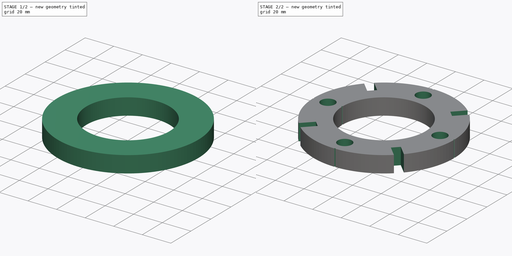
[diagram: build sequence overview — one tinted view per stage of 2, left to right]
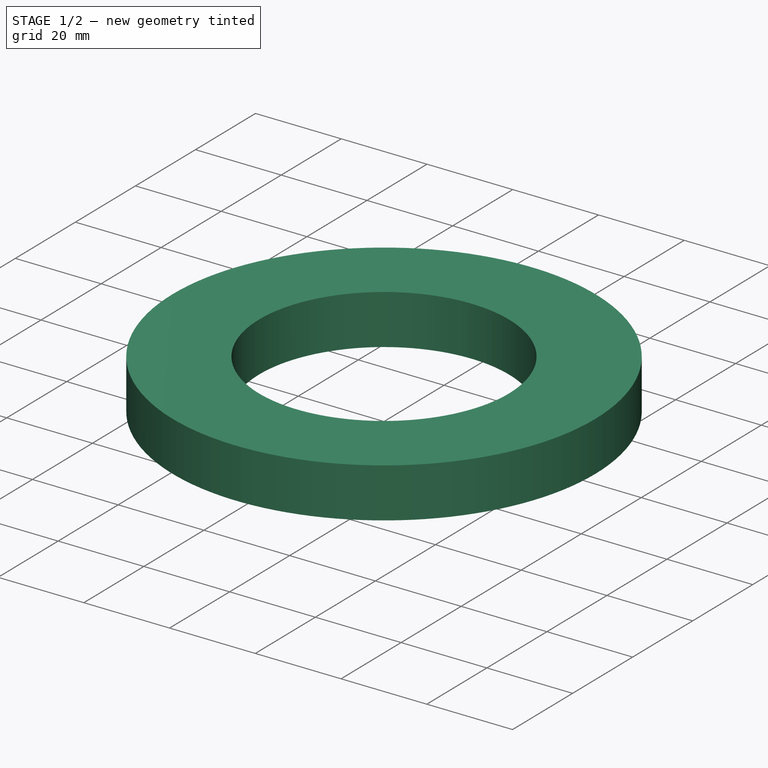
[diagram: stage 1 of 2 — iso view after this stage's code; geometry added in this stage tinted green]
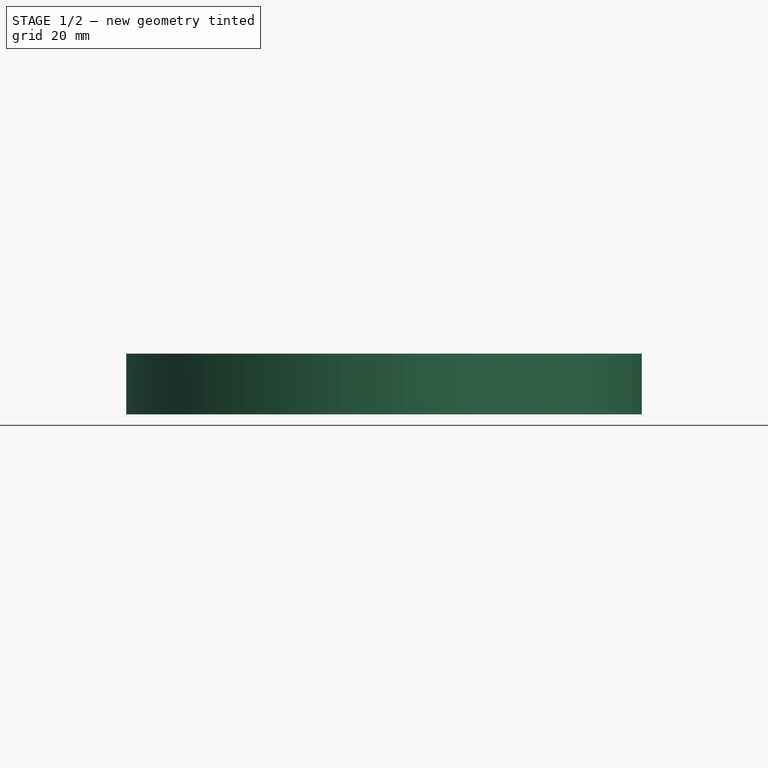
[diagram: stage 1 of 2 — front view after this stage's code; geometry added in this stage tinted green]
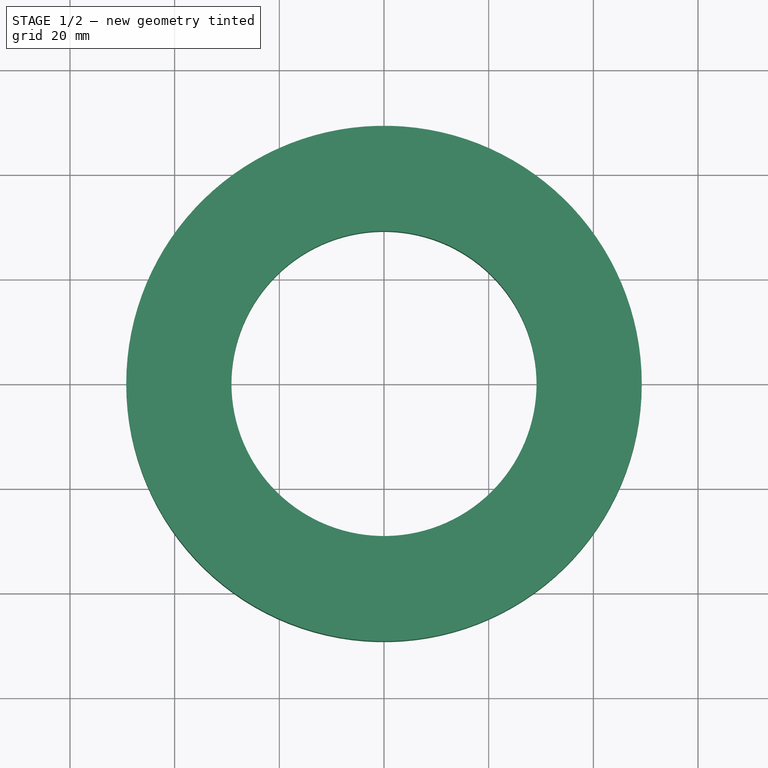
[diagram: stage 1 of 2 — top view after this stage's code; geometry added in this stage tinted green]
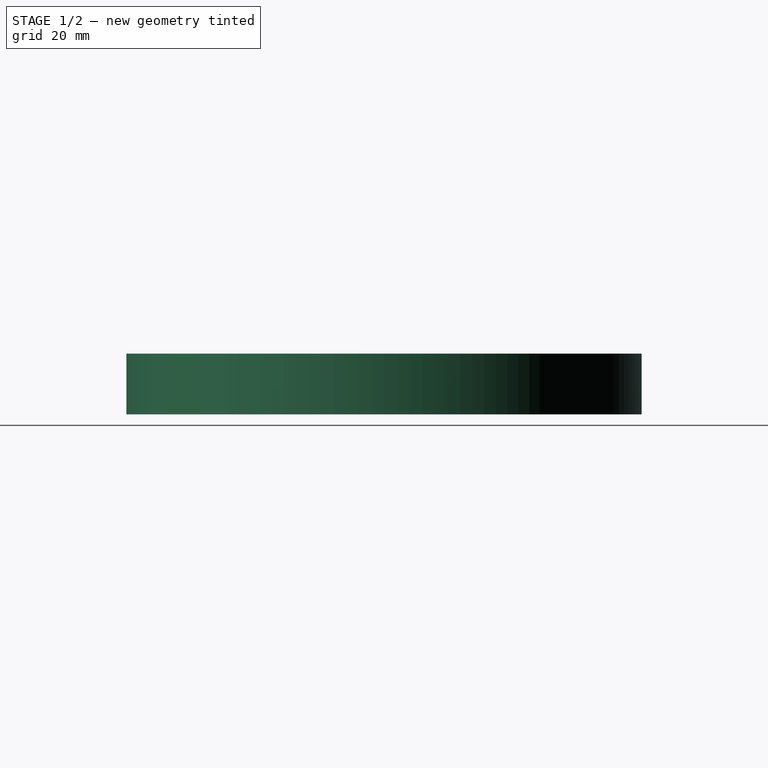
[diagram: stage 1 of 2 — right view after this stage's code; geometry added in this stage tinted green]
FCSTD DOCUMENT  (FreeCAD 1.0R39109 (Git))
Label: CenteringRing
License: Creative Commons Attribution-ShareAlike 4.0
LicenseURL: https://creativecommons.org/licenses/by-sa/4.0/
objects: Sketcher::SketchObject×3, PartDesign::Pocket×2, PartDesign::Pad×1, PartDesign::Body×1
note: 16 computed .brp shape members not serialized (recipe doc carries the construction recipe); baked Part::Feature solids carry a one-line shape summary decoded from their .brp
EXTERNAL_REF file=Variables.FCStd obj=VarSet

FEATURE [Sketcher::SketchObject] Sketch
  ArcFitTolerance = 1e-06
  AttachmentSupport = -> [XY_Plane]
  FullyConstrained = true
  MakeInternals = false
  MapMode = 5
  expr: Constraints[1] = Variables#VarSet.CR_Diameter
  sketch-geometry (1):
    g0: Circle CenterX=0 CenterY=0 CenterZ=0 NormalX=0 NormalY=0 NormalZ=1 AngleXU=0 Radius=49.25
  constraints (2):
    c: Coincident(g0,g-1)
    c: Diameter(g0) = 98.5
FEATURE [PartDesign::Pad] Pad
  Direction = (0,0,1)
  Length = 11.6
  Length2 = 10
  Profile = -> Sketch [Edge1]
  ReferenceAxis = -> Sketch [N_Axis]
  Refine = true
  Suppressed = false
  Type = 0
  expr: Length = Variables#VarSet.CR_Thickness
FEATURE [Sketcher::SketchObject] Sketch001
  ArcFitTolerance = 1e-06
  AttachmentSupport = -> [Pad]
  FullyConstrained = true
  MakeInternals = false
  MapMode = 5
  Placement = pos=(0,0,11.6) rot=(0,0,1;0rad)
  expr: Constraints[1] = Variables#VarSet.MM_OD
  sketch-geometry (1):
    g0: Circle CenterX=0 CenterY=0 CenterZ=0 NormalX=0 NormalY=0 NormalZ=1 AngleXU=0 Radius=29.15
  constraints (2):
    c: Coincident(g0,g-1)
    c: Diameter(g0) = 58.3
FEATURE [PartDesign::Pocket] Pocket
  BaseFeature = -> Pad
  Direction = (0,0,-1)
  Length = 5
  Length2 = 5
  Profile = -> Sketch001
  ReferenceAxis = -> Sketch001 [N_Axis]
  Refine = true
  Suppressed = false
  Type = 1
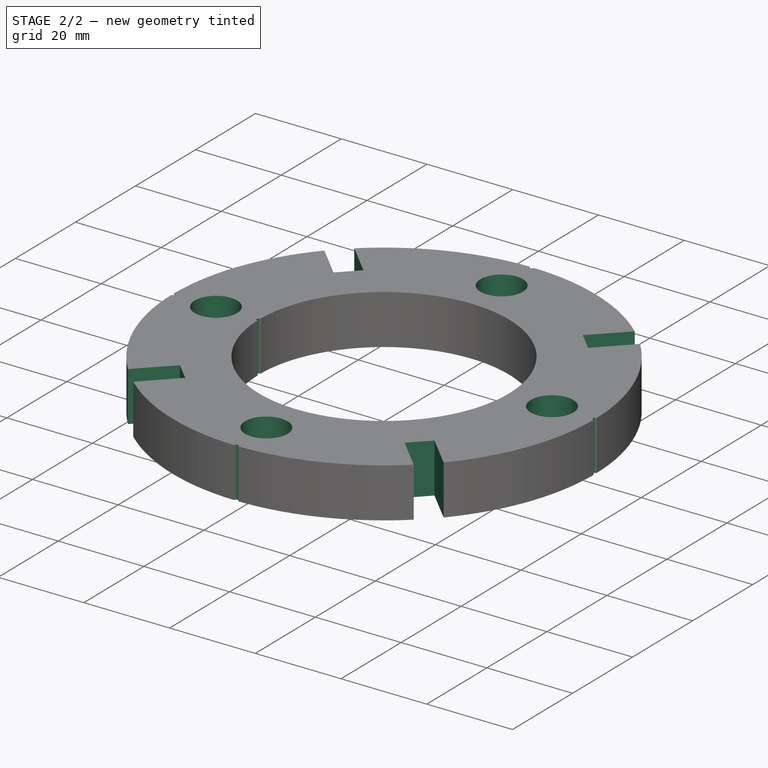
[diagram: stage 2 of 2 — iso view after this stage's code; geometry added in this stage tinted green]
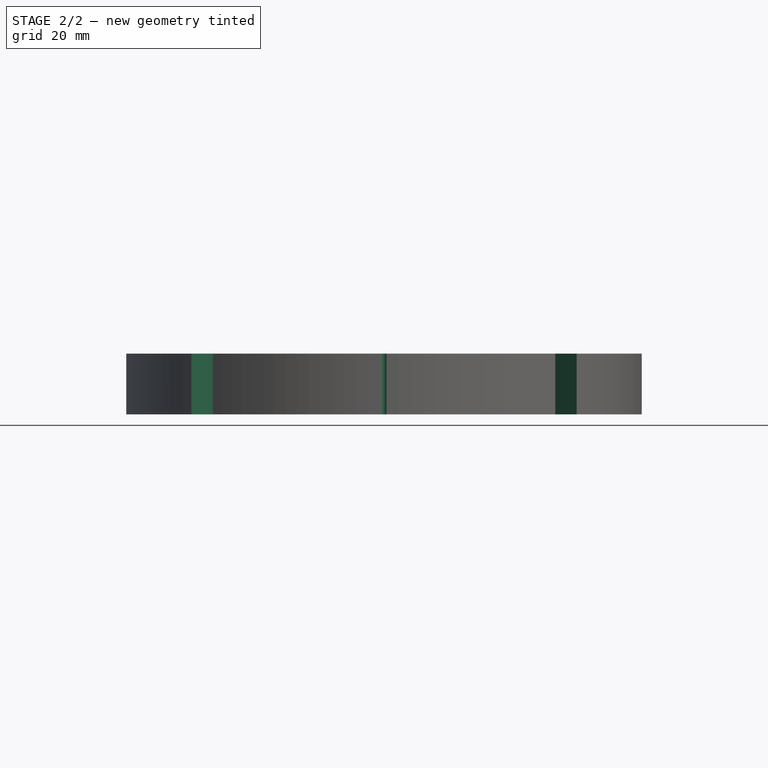
[diagram: stage 2 of 2 — front view after this stage's code; geometry added in this stage tinted green]
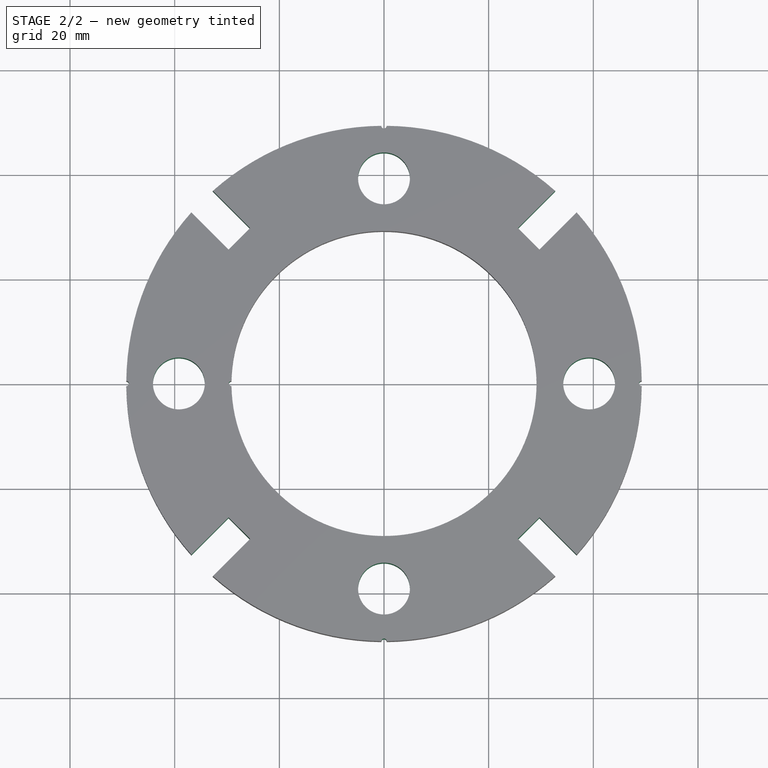
[diagram: stage 2 of 2 — top view after this stage's code; geometry added in this stage tinted green]
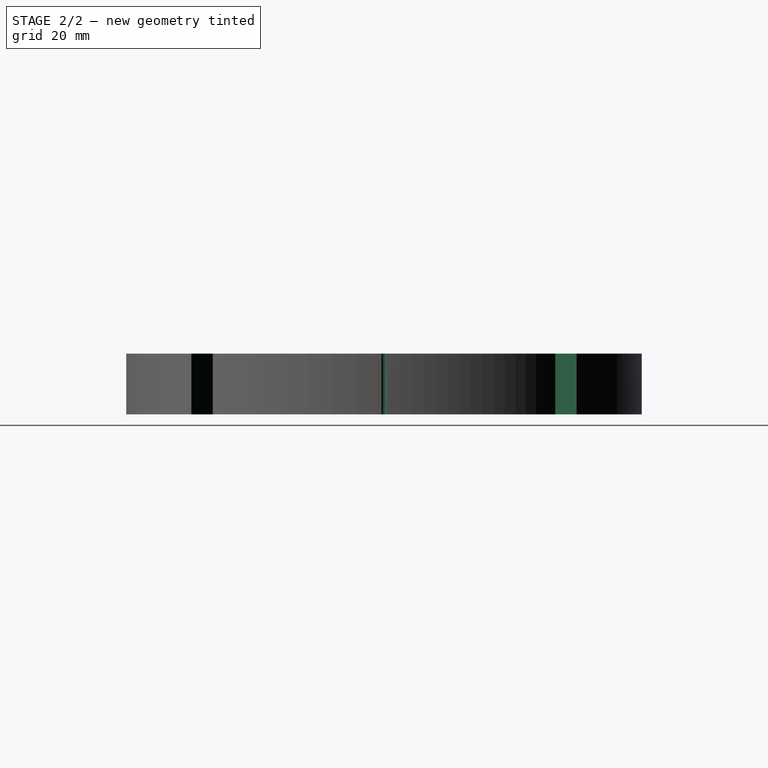
[diagram: stage 2 of 2 — right view after this stage's code; geometry added in this stage tinted green]
FEATURE [Sketcher::SketchObject] Sketch002
  ArcFitTolerance = 1e-06
  AttachmentSupport = -> [Pocket]
  ExternalGeometry = -> [Pocket]
  FullyConstrained = true
  MakeInternals = false
  MapMode = 5
  Placement = pos=(0,0,11.6) rot=(0,0,1;0rad)
  expr: Constraints[32] = Variables#VarSet.FinThickness
  expr: Constraints[3] = Variables#VarSet.BN_OD
  expr: Constraints[6] = 1
  sketch-geometry (34):
    g0: Circle CenterX=-39.2 CenterY=0 CenterZ=0 NormalX=0 NormalY=0 NormalZ=1 AngleXU=0 Radius=4.95
    g1: Circle [constr] CenterX=0 CenterY=0 CenterZ=0 NormalX=0 NormalY=0 NormalZ=1 AngleXU=0 Radius=39.2
    g2: Circle CenterX=-49.25 CenterY=0 CenterZ=0 NormalX=0 NormalY=0 NormalZ=1 AngleXU=0 Radius=0.5
    g3: Circle CenterX=-29.15 CenterY=0 CenterZ=0 NormalX=0 NormalY=0 NormalZ=1 AngleXU=0 Radius=0.5
    g4: Circle CenterX=0 CenterY=49.25 CenterZ=0 NormalX=0 NormalY=0 NormalZ=1 AngleXU=0 Radius=0.5
    g5: Circle CenterX=49.25 CenterY=0 CenterZ=0 NormalX=0 NormalY=0 NormalZ=1 AngleXU=0 Radius=0.5
    g6: Circle CenterX=0 CenterY=-49.25 CenterZ=0 NormalX=0 NormalY=0 NormalZ=1 AngleXU=0 Radius=0.5
    g7: Circle CenterX=0 CenterY=39.2 CenterZ=0 NormalX=0 NormalY=0 NormalZ=1 AngleXU=0 Radius=4.95
    g8: Circle CenterX=39.2 CenterY=0 CenterZ=0 NormalX=0 NormalY=0 NormalZ=1 AngleXU=0 Radius=4.95
    g9: Circle CenterX=0 CenterY=-39.2 CenterZ=0 NormalX=0 NormalY=0 NormalZ=1 AngleXU=0 Radius=4.95
    g10: LineSegment StartX=-32.714 StartY=36.8152 StartZ=0 EndX=-36.8152 EndY=32.714 EndZ=0
    g11: LineSegment StartX=-36.8152 StartY=32.714 StartZ=0 EndX=-29.6932 EndY=25.592 EndZ=0
    g12: LineSegment StartX=-29.6932 StartY=25.592 StartZ=0 EndX=-25.592 EndY=29.6932 EndZ=0
    g13: LineSegment StartX=-25.592 StartY=29.6932 StartZ=0 EndX=-32.714 EndY=36.8152 EndZ=0
    g14: LineSegment [constr] StartX=-32.714 StartY=36.8152 StartZ=0 EndX=0 EndY=49.25 EndZ=0
    g15: LineSegment [constr] StartX=-36.8152 StartY=32.714 StartZ=0 EndX=-49.25 EndY=0 EndZ=0
    g16: LineSegment StartX=36.8152 StartY=32.714 StartZ=0 EndX=32.714 EndY=36.8152 EndZ=0
    g17: LineSegment StartX=32.714 StartY=36.8152 StartZ=0 EndX=25.592 EndY=29.6932 EndZ=0
    g18: LineSegment StartX=25.592 StartY=29.6932 StartZ=0 EndX=29.6932 EndY=25.592 EndZ=0
    g19: LineSegment StartX=29.6932 StartY=25.592 StartZ=0 EndX=36.8152 EndY=32.714 EndZ=0
    g20: LineSegment [constr] StartX=32.714 StartY=36.8152 StartZ=0 EndX=0 EndY=49.25 EndZ=0
    g21: LineSegment [constr] StartX=36.8152 StartY=32.714 StartZ=0 EndX=49.25 EndY=0 EndZ=0
    g22: LineSegment StartX=32.714 StartY=-36.8152 StartZ=0 EndX=36.8152 EndY=-32.714 EndZ=0
    g23: LineSegment StartX=36.8152 StartY=-32.714 StartZ=0 EndX=29.6932 EndY=-25.592 EndZ=0
    g24: LineSegment StartX=29.6932 StartY=-25.592 StartZ=0 EndX=25.592 EndY=-29.6932 EndZ=0
    g25: LineSegment StartX=25.592 StartY=-29.6932 StartZ=0 EndX=32.714 EndY=-36.8152 EndZ=0
    g26: LineSegment [constr] StartX=36.8152 StartY=-32.714 StartZ=0 EndX=49.25 EndY=0 EndZ=0
    g27: LineSegment [constr] StartX=32.714 StartY=-36.8152 StartZ=0 EndX=0 EndY=-49.25 EndZ=0
    g28: LineSegment StartX=-36.8152 StartY=-32.714 StartZ=0 EndX=-32.714 EndY=-36.8152 EndZ=0
    g29: LineSegment StartX=-32.714 StartY=-36.8152 StartZ=0 EndX=-25.592 EndY=-29.6932 EndZ=0
    g30: LineSegment StartX=-25.592 StartY=-29.6932 StartZ=0 EndX=-29.6932 EndY=-25.592 EndZ=0
    g31: LineSegment StartX=-29.6932 StartY=-25.592 StartZ=0 EndX=-36.8152 EndY=-32.714 EndZ=0
    g32: LineSegment [constr] StartX=-32.714 StartY=-36.8152 StartZ=0 EndX=0 EndY=-49.25 EndZ=0
    g33: LineSegment [constr] StartX=-36.8152 StartY=-32.714 StartZ=0 EndX=-49.25 EndY=0 EndZ=0
  constraints (92):
    c: Coincident(g1,g-1)
    c: PointOnObject(g0,g1)
    c: PointOnObject(g0,g-1)
    c: Diameter(g0) = 9.9
    c: PointOnObject(g2,g-3)
    c: PointOnObject(g3,g-4)
    c: Diameter(g2) = 1
    c: PointOnObject(g2,g-1)
    c: Diameter(g3) = 1
    c: Equal(g2,g4)
    c: Equal(g2,g5)
    c: Equal(g2,g6)
    c: PointOnObject(g5,g-1)
    c: PointOnObject(g5,g-3)
    c: PointOnObject(g4,g-2)
    c: PointOnObject(g4,g-3)
    c: PointOnObject(g6,g-2)
    c: PointOnObject(g6,g-3)
    c: Symmetric(g3,g2,g0)
    c: Equal(g0,g7)
    c: Equal(g0,g8)
    c: Equal(g0,g9)
    c: PointOnObject(g7,g-2)
    c: PointOnObject(g7,g1)
    c: PointOnObject(g8,g-1)
    c: PointOnObject(g8,g1)
    c: PointOnObject(g9,g-2)
    c: PointOnObject(g9,g1)
    c: Coincident(g10,g11)
    c: Coincident(g11,g12)
    c: Coincident(g12,g13)
    c: Coincident(g13,g10)
    c: Distance(g10,g10) = 5.8
    c: Equal(g12,g10)
    c: Perpendicular(g13,g10)
    c: Perpendicular(g11,g12)
    c: PointOnObject(g11,g1)
    c: PointOnObject(g12,g1)
    c: PointOnObject(g10,g-3)
    c: Coincident(g14,g10)
    c: Coincident(g14,g4)
    c: Coincident(g15,g10)
    c: Coincident(g15,g2)
    c: Equal(g15,g14)
    c: Coincident(g16,g17)
    c: Coincident(g22,g23)
    c: Coincident(g28,g29)
    c: Coincident(g17,g18)
    c: Coincident(g23,g24)
    c: Coincident(g29,g30)
    c: Coincident(g18,g19)
    c: Coincident(g24,g25)
    c: Coincident(g30,g31)
    c: Coincident(g19,g16)
    c: Coincident(g25,g22)
    c: Coincident(g31,g28)
    c: Distance(g16,g16) = 5.8
    c: Distance(g22,g22) = 5.8
    c: Distance(g28,g28) = 5.8
    c: Equal(g18,g16)
    c: Equal(g24,g22)
    c: Equal(g30,g28)
    c: Perpendicular(g19,g16)
    c: Perpendicular(g25,g22)
    c: Perpendicular(g31,g28)
    c: Perpendicular(g17,g18)
    c: Perpendicular(g23,g24)
    c: Perpendicular(g29,g30)
    c: Coincident(g21,g16)
    c: Coincident(g27,g22)
    c: Coincident(g33,g28)
    c: Coincident(g20,g16)
    c: Coincident(g26,g22)
    c: Coincident(g32,g28)
    c: Equal(g20,g21)
    c: Equal(g26,g27)
    c: Equal(g32,g33)
    c: PointOnObject(g16,g-3)
    c: PointOnObject(g18,g1)
    c: PointOnObject(g17,g1)
    c: Coincident(g20,g4)
    c: Coincident(g21,g5)
    c: Coincident(g33,g2)
    c: Coincident(g32,g6)
    c: Coincident(g27,g6)
    c: Coincident(g26,g5)
    c: PointOnObject(g23,g1)
    c: PointOnObject(g24,g1)
    c: PointOnObject(g22,g-3)
    c: PointOnObject(g30,g1)
    c: PointOnObject(g29,g1)
    c: PointOnObject(g28,g-3)
FEATURE [PartDesign::Pocket] Pocket001
  BaseFeature = -> Pocket
  Direction = (0,0,-1)
  Length = 5
  Length2 = 5
  Profile = -> Sketch002
  ReferenceAxis = -> Sketch002 [N_Axis]
  Refine = true
  Suppressed = false
  Type = 1
FEATURE [PartDesign::Body] Body
  AllowCompound = false
  Group = -> [Sketch,Pad,Sketch001,Pocket,Sketch002,Pocket001]
  Origin = -> Origin
  Tip = -> Pocket001
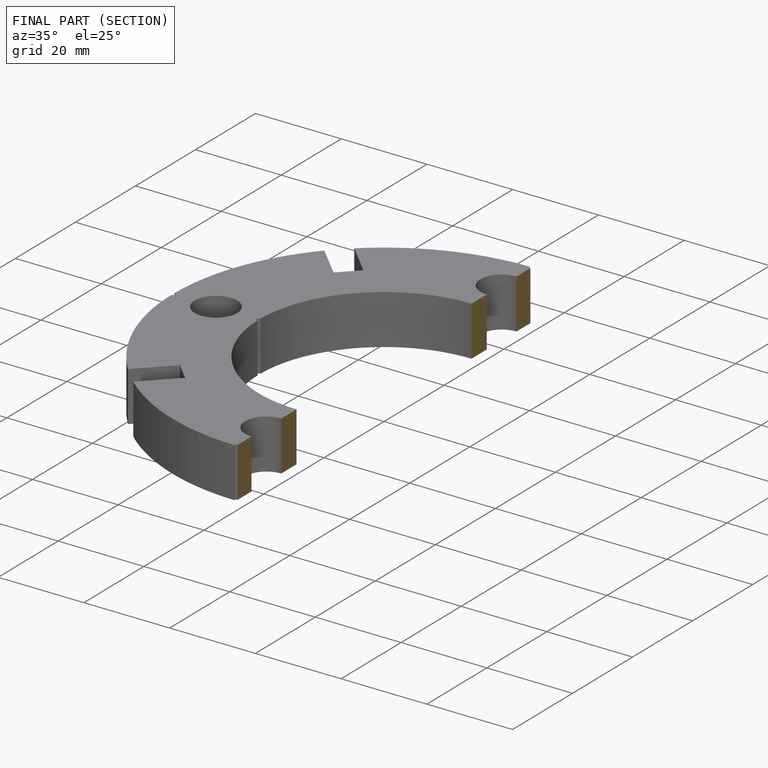
[diagram: finished part — half-section view (interior)]
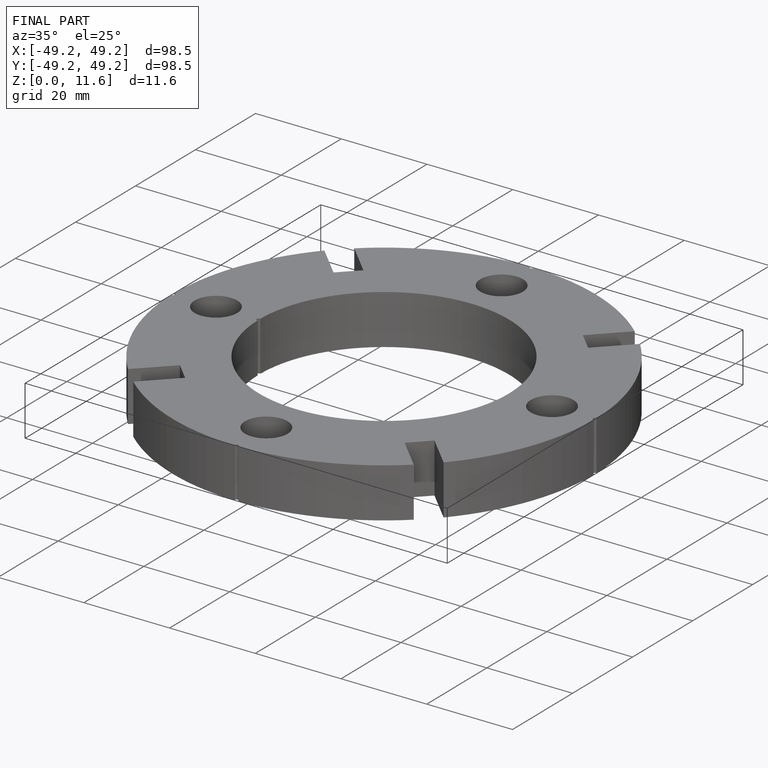
[diagram: finished part — iso view with bounding-box wireframe]
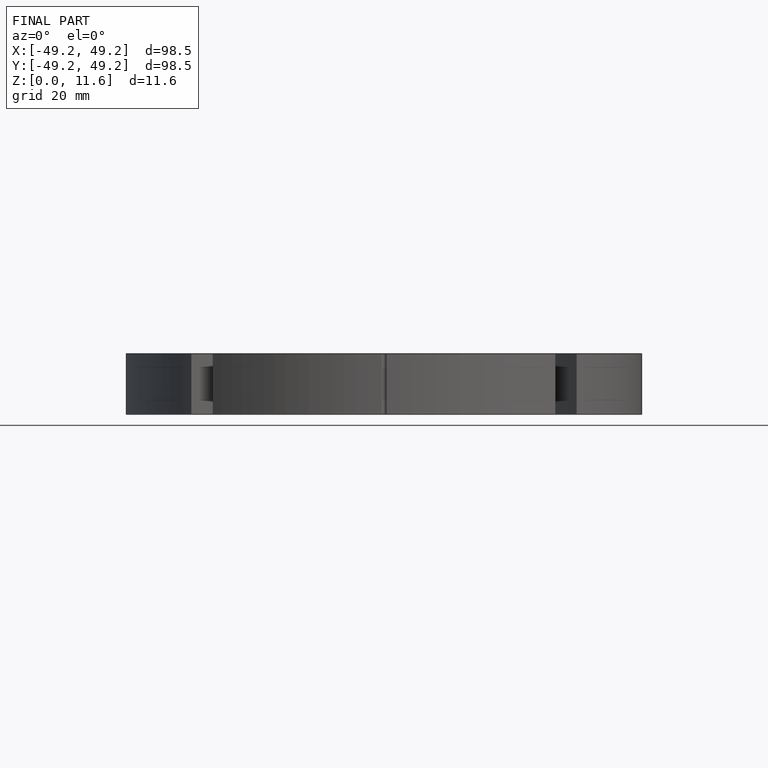
[diagram: finished part — front view with bounding-box wireframe]
